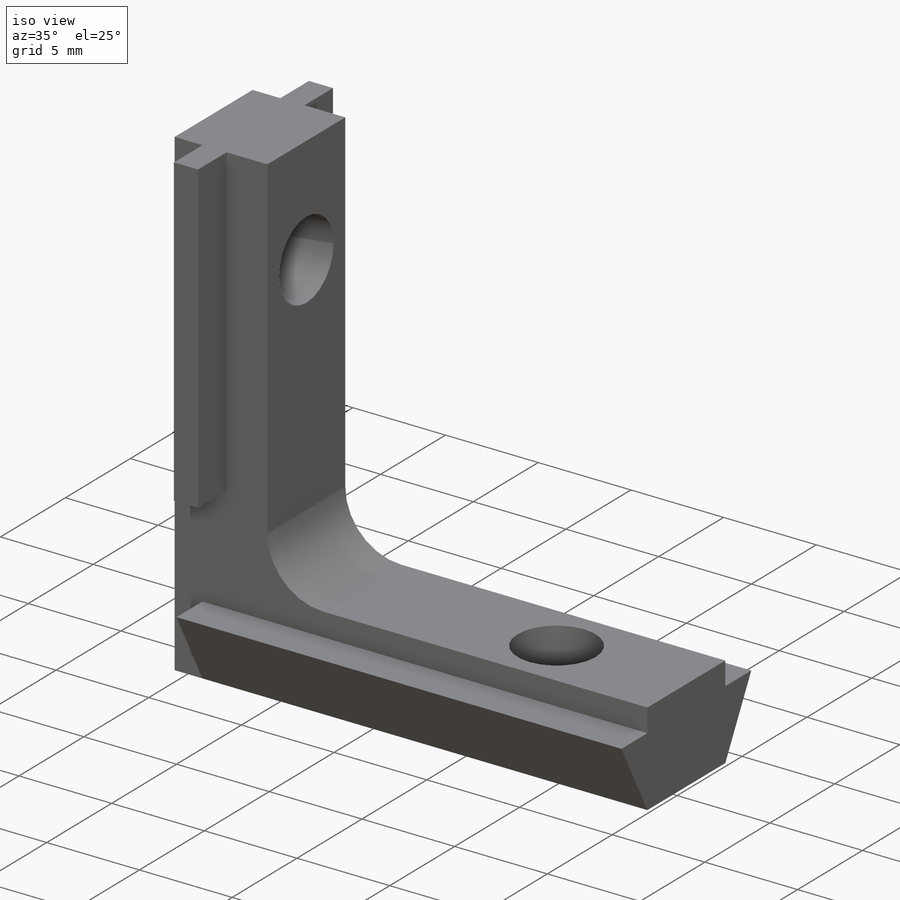
[diagram: iso view]
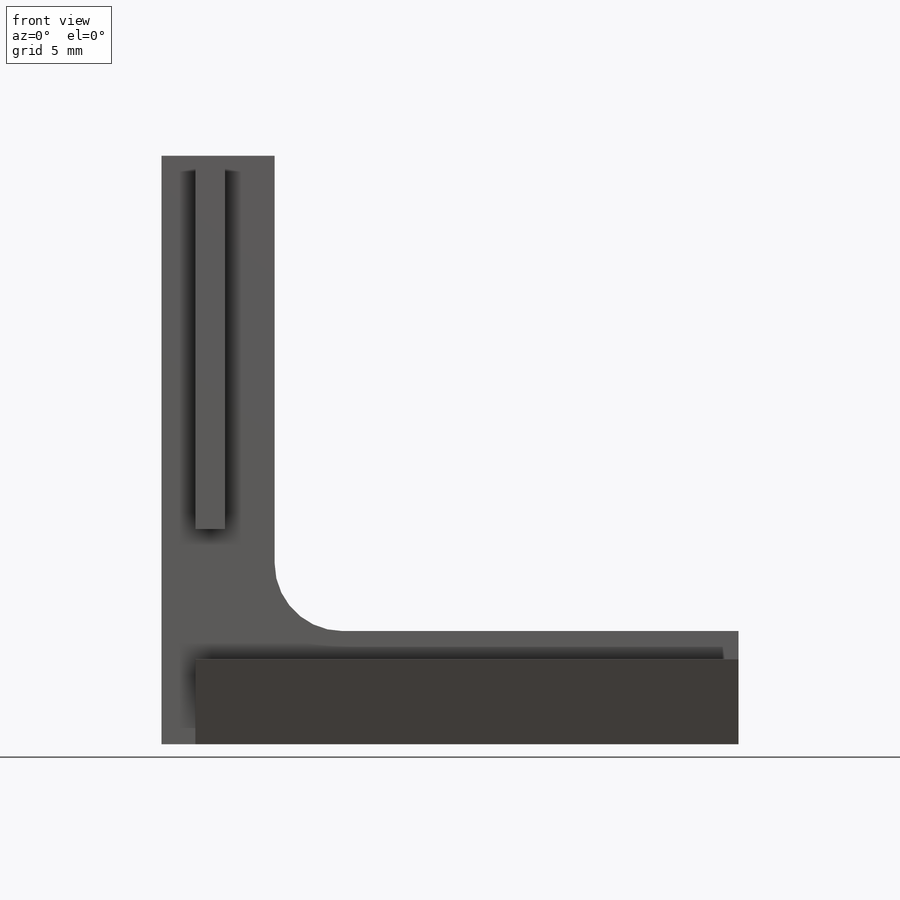
[diagram: front view]
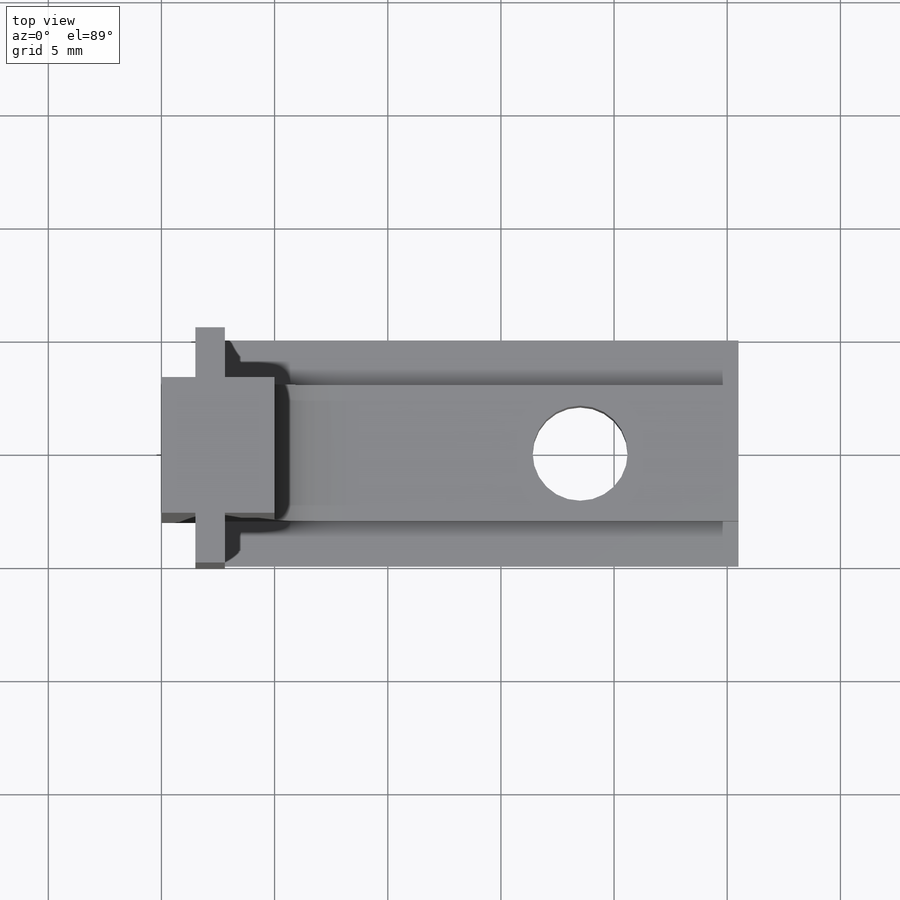
[diagram: top view]
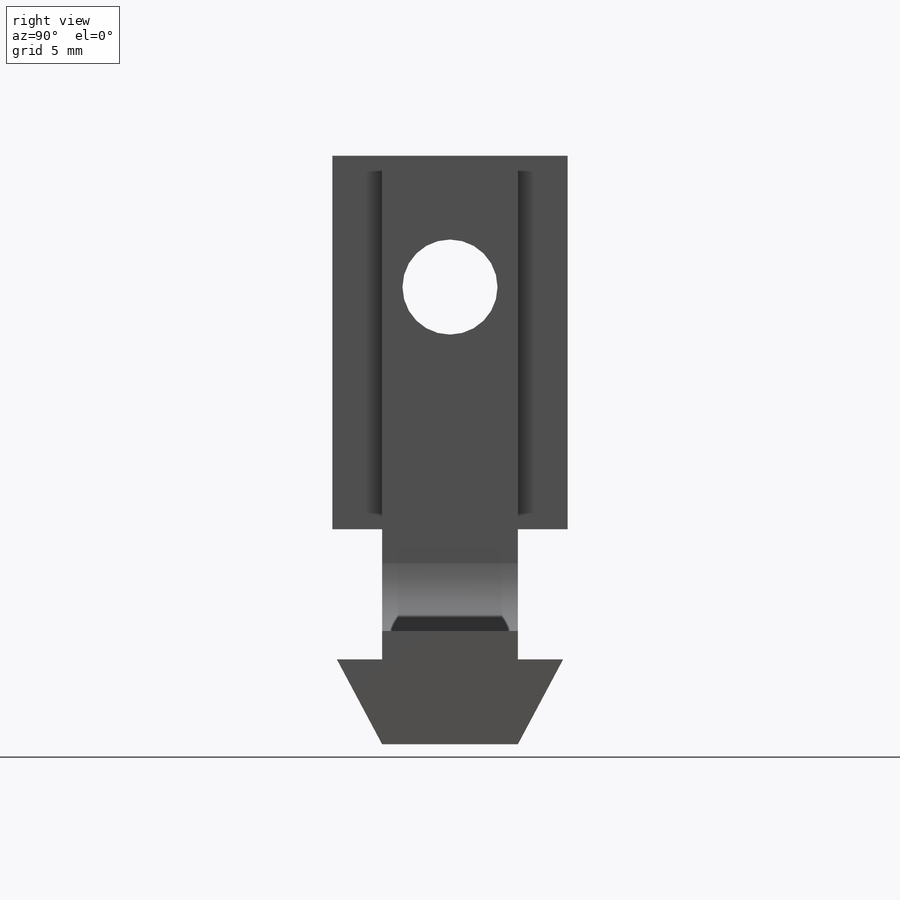
[diagram: right view]
SOLIDWORKS PART (.sldprt)
format: sldprt  version: not decoded by parser v0  size: 240,128 bytes
history: native  units: mm
features: sketch x7, extrude x3, hole x2, material x1 (+13 scaffold rows collapsed)
feature tree (26):
  scaffold x13  (default folders/planes/origin — collapsed)
  material  "Zinc AC41A Alloy, As Cast"
  sketch  "Sketch1"  dims[D5=3.0mm D1=26.0mm D2=25.5mm D3=5.0mm D4=5.0mm]
  extrude  "Boss-Extrude1"  Depth=6mm
  sketch  "Sketch2"  dims[D1=10.0mm D2=1.25mm]
  extrude  "Boss-Extrude2"  Depth=24mm
  sketch  "Sketch3"  dims[D1=2.8mm D2=10.4mm]
  extrude  "Boss-Extrude3"  Depth=16.5mm
  hole  "M5x0.8 Tapped Hole1"  Diameter=4.2mm Depth=5mm
  sketch  "Sketch5"  dims[D1=7.0mm]
  sketch  "Sketch4"  dims[hole-wizard template sketch: 60 standard entries collapsed; hole parameters kept: c18.Thru Tap Drill Depth=5.0mm]
  hole  "M5x0.8 Tapped Hole2"  Diameter=4.2mm Depth=5mm
  sketch  "Sketch7"  dims[D1=5.8mm]
  sketch  "Sketch6"  dims[hole-wizard template sketch: 60 standard entries collapsed; hole parameters kept: c18.Thru Tap Drill Depth=5.0mm]
decode coverage: 12 of 12 modeling features carry decoded parameters
note: ~ marks probable driven/reference dimensions
note: suppression state not decoded; provenance and decode notes live in map.json
